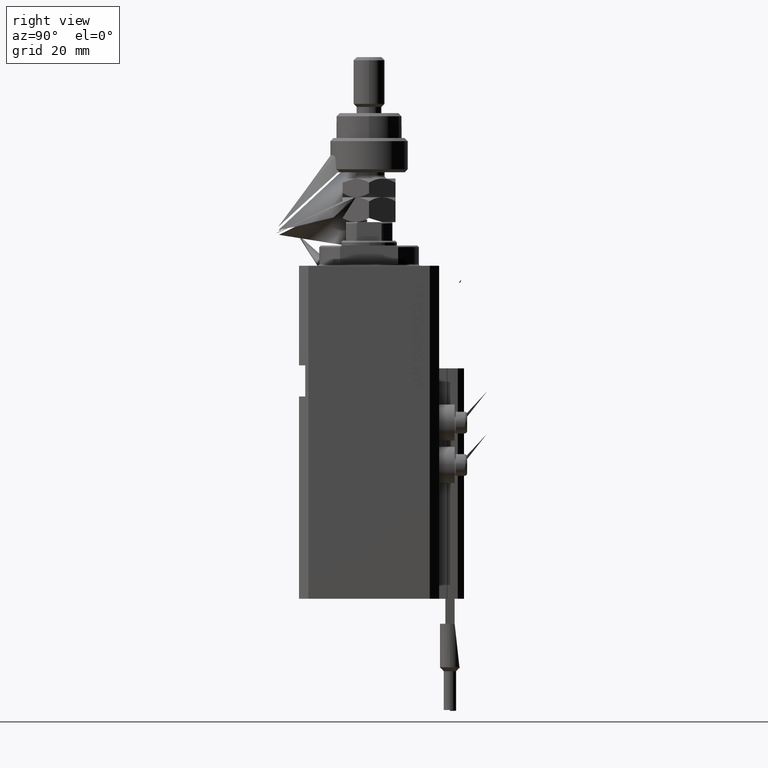
[diagram: clean part render]
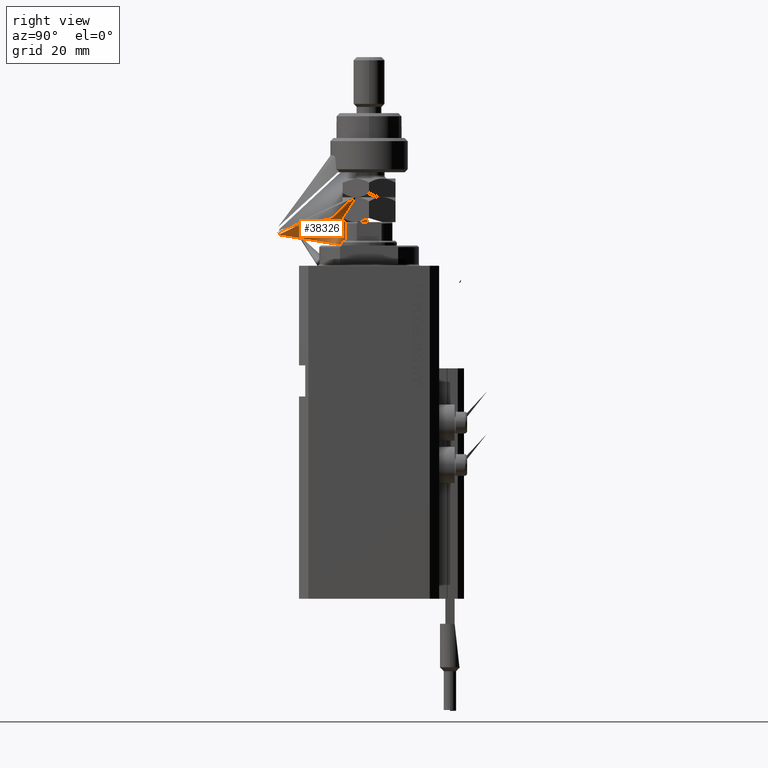
[diagram: same view with one face highlighted and labeled with its STEP entity id]
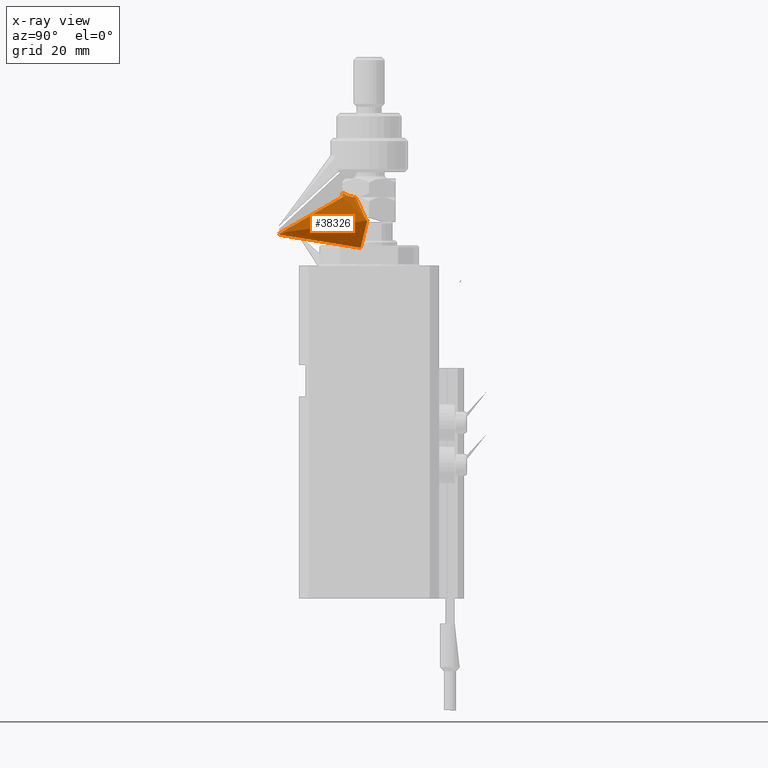
[diagram: x-ray of the same camera — body ghosted, the highlighted face saturated]
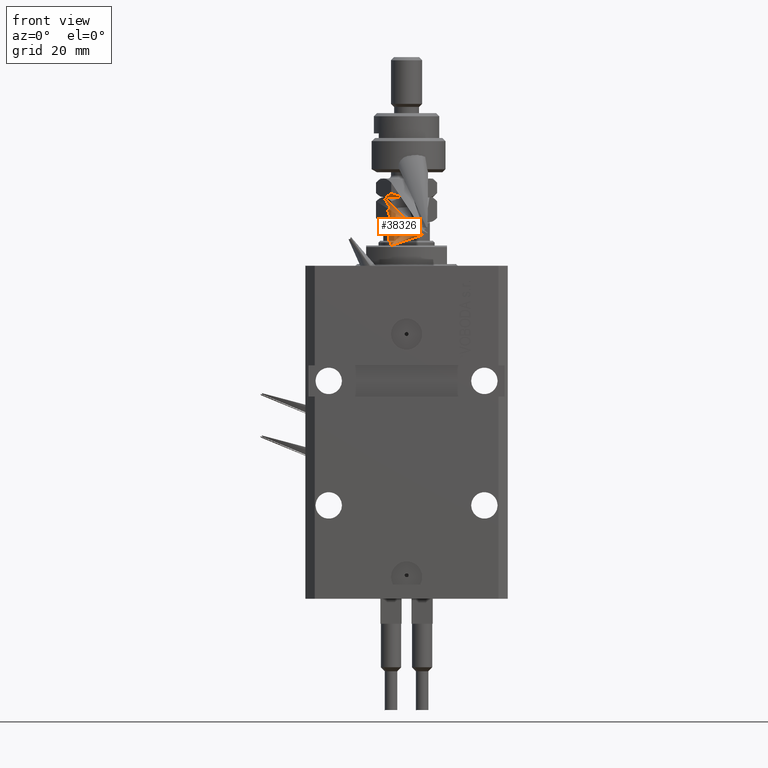
[diagram: same view with one face highlighted and labeled with its STEP entity id]
A machine part, right view. The second image highlights one B-rep face of the part: STEP entity #38326.
The next image is the same camera in x-ray: the body ghosted, the highlighted face saturated — about 0% of this face is hidden behind the body in this view.
A second angle (front view) of the same face is appended — the face is thin or edge-on in the first view.
In plain terms, the highlighted conical surface has half-angle 45 deg.
Its self-contained STEP definition (entity closure, byte-faithful):
#36 = CARTESIAN_POINT ( 'NONE',  ( 18.30501668086029454, -22.49999999999949196, -3.664704302246647227 ) ) ;
#1111 = DIRECTION ( 'NONE',  ( 0.000000000000000000, 0.000000000000000000, 1.000000000000000000 ) ) ;
#2267 = CARTESIAN_POINT ( 'NONE',  ( -0.6664608216042837707, -9.430173241466063061, 8.930173241466061285 ) ) ;
#2781 = CARTESIAN_POINT ( 'NONE',  ( -2.407069963478076335, -8.425232084851300485, 8.253624089324651081 ) ) ;
#4022 = VERTEX_POINT ( 'NONE', #12618 ) ;
#4195 = CARTESIAN_POINT ( 'NONE',  ( 19.18724423714644445, -22.49999999999950262, -4.090416845570349125 ) ) ;
#4608 = CARTESIAN_POINT ( 'NONE',  ( 18.27272727272377395, -22.49999999999950262, -3.486505681818172331 ) ) ;
#6000 = VERTEX_POINT ( 'NONE', #43883 ) ;
#6167 = CARTESIAN_POINT ( 'NONE',  ( -1.348005192929855323, -9.036683415216572257, 8.603209212420129148 ) ) ;
#8094 = CARTESIAN_POINT ( 'NONE',  ( 18.27447386672496776, -22.49999999999949907, -3.547852108986999209 ) ) ;
#8590 = ORIENTED_EDGE ( 'NONE', *, *, #26292, .T. ) ;
#10262 = ORIENTED_EDGE ( 'NONE', *, *, #13296, .T. ) ;
#11974 = CARTESIAN_POINT ( 'NONE',  ( 18.64431544551117170, -22.49999999999950262, -3.993473785527112074 ) ) ;
#12618 = CARTESIAN_POINT ( 'NONE',  ( -4.249999999999999112, -7.361215932167734621, 8.000000000000000000 ) ) ;
#13035 = DIRECTION ( 'NONE',  ( -1.000000000000000000, 0.000000000000000000, 0.000000000000000000 ) ) ;
#13172 = B_SPLINE_CURVE_WITH_KNOTS ( 'NONE', 3,
 ( #45857, #2267, #6167, #2781, #49761, #30018, #26124, #17822 ),
 .UNSPECIFIED., .F., .F.,
 ( 4, 2, 2, 4 ),
 ( 2.544313836671655241E-07, 0.002543776790731948866, 0.003815537970406091342, 0.005087299150080234686 ),
 .UNSPECIFIED. ) ;
#13296 = EDGE_CURVE ( 'NONE', #42882, #4022, #13172, .T. ) ;
#15360 = CARTESIAN_POINT ( 'NONE',  ( 18.40620255180018461, -22.49999999999950973, -3.822558644867388722 ) ) ;
#15864 = CARTESIAN_POINT ( 'NONE',  ( 18.36438172593672036, -22.49999999999949551, -3.772761266645609179 ) ) ;
#16293 = B_SPLINE_CURVE_WITH_KNOTS ( 'NONE', 3,
 ( #24167, #39742, #8094, #35586, #36, #28045, #15864, #15360, #31952, #31699, #47530, #11974, #31189, #47786, #23912, #35847, #43881, #4195, #27028 ),
 .UNSPECIFIED., .F., .F.,
 ( 4, 1, 1, 1, 1, 1, 1, 1, 1, 1, 1, 1, 1, 1, 1, 1, 4 ),
 ( 0.000000000000000000, 0.04920811144330927700, 0.09693932954809225677, 0.1444395158836682125, 0.1924372048271319746, 0.2419392722209237623, 0.2932722615143555922, 0.3471776383388053278, 0.4041514519133187489, 0.4641377667933034301, 0.5270227956702957517, 0.5937146723299064899, 0.6648417762905728390, 0.7403695305280298955, 0.8212684990064686996, 0.9079296628467063979, 1.000000000000000000 ),
 .UNSPECIFIED. ) ;
#16578 = CARTESIAN_POINT ( 'NONE',  ( 6.428361570398703622E-17, -9.814954576223636096, 9.314954576223632543 ) ) ;
#16699 = CARTESIAN_POINT ( 'NONE',  ( 1.350892646810553321, -9.035016342941275980, 8.600938412736123695 ) ) ;
#17822 = CARTESIAN_POINT ( 'NONE',  ( -4.249999999999999112, -7.361215932167734621, 8.000000000000000000 ) ) ;
#23738 = CARTESIAN_POINT ( 'NONE',  ( 2.784079206026080833, -8.207565697179237674, 8.130520287383214750 ) ) ;
#23912 = CARTESIAN_POINT ( 'NONE',  ( 18.90259639317121909, -22.49999999999950617, -4.067630767912974399 ) ) ;
#23988 = CARTESIAN_POINT ( 'NONE',  ( 0.6656893889372508255, -9.430618628324038966, 8.930618628323932384 ) ) ;
#24167 = CARTESIAN_POINT ( 'NONE',  ( 18.27272727272377395, -22.49999999999950262, -3.486505681818172331 ) ) ;
#26124 = CARTESIAN_POINT ( 'NONE',  ( -3.877770021349437712, -7.576123010542077374, 8.000000000000000000 ) ) ;
#26292 = ORIENTED_EDGE ( 'NONE', *, *, #40534, .F. ) ;
#27028 = CARTESIAN_POINT ( 'NONE',  ( 19.22585227272377395, -22.49999999999950617, -4.090909090909081058 ) ) ;
#28045 = CARTESIAN_POINT ( 'NONE',  ( 18.33082061756188708, -22.49999999999950617, -3.719937277263664299 ) ) ;
#28359 = VERTEX_POINT ( 'NONE', #4608 ) ;
#29635 = FACE_OUTER_BOUND ( 'NONE', #36593, .T. ) ;
#30018 = CARTESIAN_POINT ( 'NONE',  ( -3.499970675361007366, -7.794245564648160318, 8.033736749598366700 ) ) ;
#31189 = CARTESIAN_POINT ( 'NONE',  ( 18.72294967978283253, -22.49999999999950617, -4.023851601041551262 ) ) ;
#31699 = CARTESIAN_POINT ( 'NONE',  ( 18.51008928196227643, -22.49999999999950973, -3.915994683985407399 ) ) ;
#31952 = CARTESIAN_POINT ( 'NONE',  ( 18.45485401980628382, -22.49999999999950262, -3.870173257517955268 ) ) ;
#32132 = VERTEX_POINT ( 'NONE', #42888 ) ;
#32786 = CARTESIAN_POINT ( 'NONE',  ( 4.249999999999994671, -7.361215932167728404, 8.000000000000000000 ) ) ;
#35586 = CARTESIAN_POINT ( 'NONE',  ( 18.28653268195522941, -22.49999999999950973, -3.607460492523363538 ) ) ;
#35847 = CARTESIAN_POINT ( 'NONE',  ( 19.00373741225382673, -22.49999999999950262, -4.080605486441494456 ) ) ;
#36171 = CARTESIAN_POINT ( 'NONE',  ( 3.510754653168321582, -7.788019432158173494, 8.000000000000000000 ) ) ;
#36593 = EDGE_LOOP ( 'NONE', ( #49668, #10262, #8590 ) ) ;
#37313 = AXIS2_PLACEMENT_3D ( 'NONE', #45478, #1111, #13035 ) ;
#38326 = ADVANCED_FACE ( 'NONE', ( #29635 ), #43138, .T. ) ;
#39742 = CARTESIAN_POINT ( 'NONE',  ( 18.27331535412755059, -22.49999999999950262, -3.507161136366637955 ) ) ;
#40534 = EDGE_CURVE ( 'NONE', #28359, #6000, #16293, .T. ) ;
#41787 = B_SPLINE_CURVE_WITH_KNOTS ( 'NONE', 3,
 ( #32786, #36171, #23738, #16699, #23988, #48370 ),
 .UNSPECIFIED., .F., .F.,
 ( 4, 2, 4 ),
 ( 0.005087299150080240757, 0.007613005268011858312, 0.01013871138594347673 ),
 .UNSPECIFIED. ) ;
#42882 = VERTEX_POINT ( 'NONE', #16578 ) ;
#42888 = CARTESIAN_POINT ( 'NONE',  ( 4.249999999999994671, -7.361215932167728404, 8.000000000000000000 ) ) ;
#43138 = CONICAL_SURFACE ( 'NONE', #37313, 8.499999999999996447, 0.7853981633974500554 ) ;
#43881 = CARTESIAN_POINT ( 'NONE',  ( 19.11229640527679052, -22.49999999999950617, -4.089461274525769241 ) ) ;
#43883 = CARTESIAN_POINT ( 'NONE',  ( 19.22585227272377395, -22.49999999999950617, -4.090909090909081058 ) ) ;
#45478 = CARTESIAN_POINT ( 'NONE',  ( 0.000000000000000000, 0.000000000000000000, 8.000000000000000000 ) ) ;
#45857 = CARTESIAN_POINT ( 'NONE',  ( 6.428361570398703622E-17, -9.814954576223636096, 9.314954576223632543 ) ) ;
#47530 = CARTESIAN_POINT ( 'NONE',  ( 18.57359128784406366, -22.49999999999950617, -3.956938466558325818 ) ) ;
#47786 = CARTESIAN_POINT ( 'NONE',  ( 18.80904214364419147, -22.49999999999949551, -4.048453005885771283 ) ) ;
#47967 = EDGE_CURVE ( 'NONE', #32132, #42882, #41787, .T. ) ;
#48370 = CARTESIAN_POINT ( 'NONE',  ( 6.428361570398703622E-17, -9.814954576223636096, 9.314954576223632543 ) ) ;
#49668 = ORIENTED_EDGE ( 'NONE', *, *, #47967, .T. ) ;
#49761 = CARTESIAN_POINT ( 'NONE',  ( -2.766281260884825066, -8.217841345597568292, 8.160821707941833481 ) ) ;